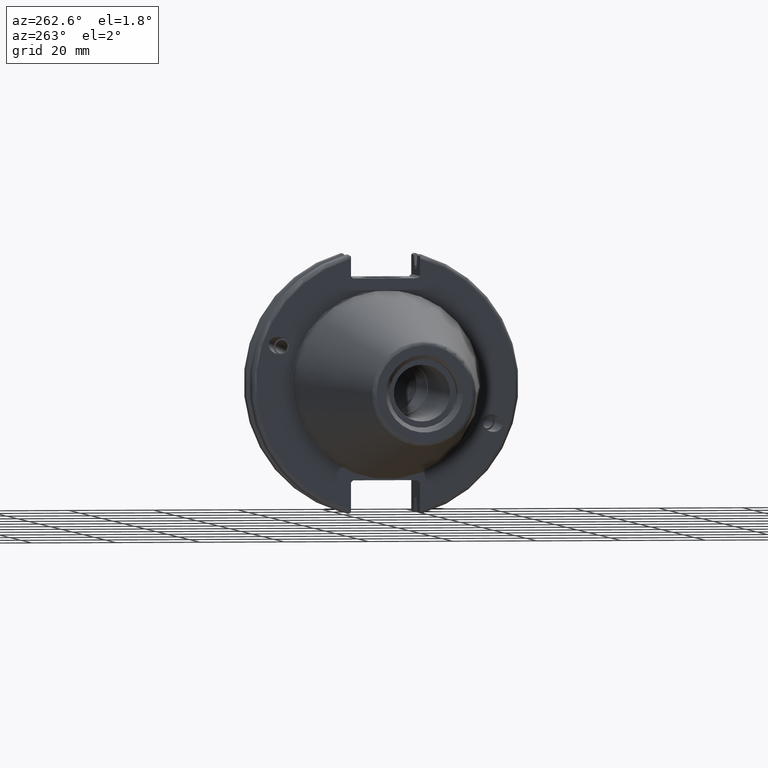
[diagram: clean part render]
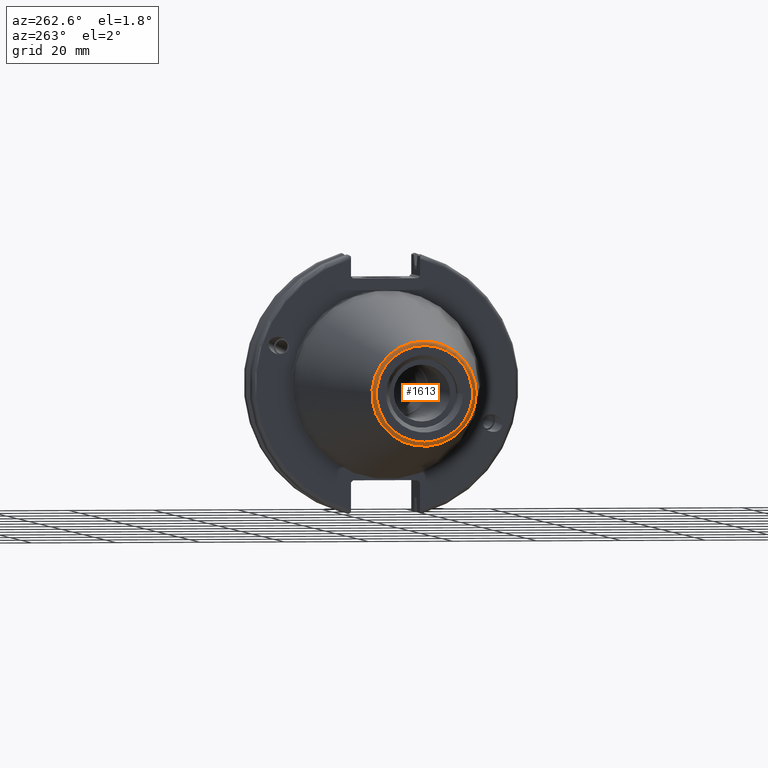
[diagram: same view with one face highlighted and labeled with its STEP entity id]
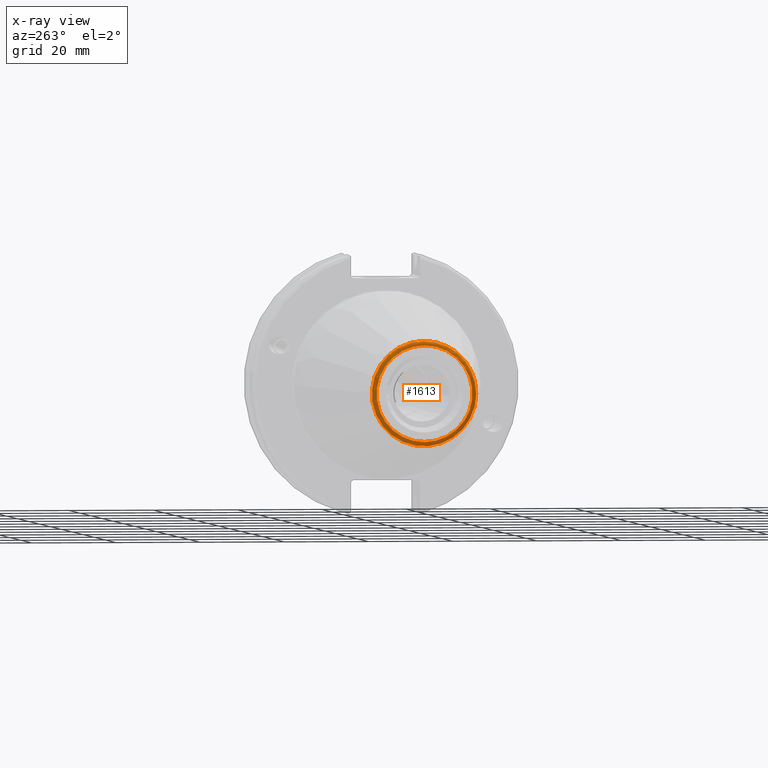
[diagram: x-ray of the same camera — body ghosted, the highlighted face saturated]
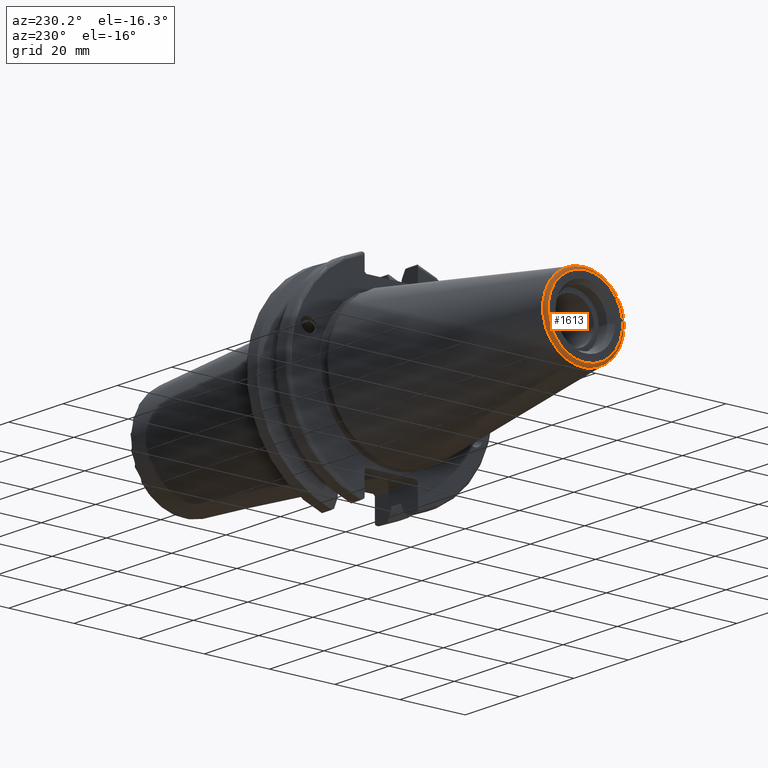
[diagram: same view with one face highlighted and labeled with its STEP entity id]
A machine part, auxiliary view. The second image highlights one B-rep face of the part: STEP entity #1613.
The next image is the same camera in x-ray: the body ghosted, the highlighted face saturated — about 0% of this face is hidden behind the body in this view.
A second angle (auxiliary view) of the same face is appended — the face is thin or edge-on in the first view.
In plain terms, the highlighted toroidal blend (fillet) surface has major radius 11.4071 mm and minor (blend) radius 1 mm.
Its self-contained STEP definition (entity closure, byte-faithful):
#436=FACE_OUTER_BOUND('',#542,.T.);
#542=EDGE_LOOP('',(#1401,#1402,#1403,#1404,#1405));
#637=CIRCLE('',#1810,12.3966635780937);
#638=CIRCLE('',#1811,12.3966635780937);
#639=CIRCLE('',#1812,1.);
#640=CIRCLE('',#1813,11.4071305970304);
#799=VERTEX_POINT('',#3066);
#800=VERTEX_POINT('',#3067);
#801=VERTEX_POINT('',#3070);
#1018=EDGE_CURVE('',#799,#800,#637,.T.);
#1019=EDGE_CURVE('',#800,#799,#638,.T.);
#1020=EDGE_CURVE('',#799,#801,#639,.T.);
#1021=EDGE_CURVE('',#801,#801,#640,.T.);
#1401=ORIENTED_EDGE('',*,*,#1018,.T.);
#1402=ORIENTED_EDGE('',*,*,#1019,.T.);
#1403=ORIENTED_EDGE('',*,*,#1020,.T.);
#1404=ORIENTED_EDGE('',*,*,#1021,.T.);
#1405=ORIENTED_EDGE('',*,*,#1020,.F.);
#1551=TOROIDAL_SURFACE('',#1809,11.4071305970304,1.);
#1613=ADVANCED_FACE('',(#436),#1551,.T.);
#1809=AXIS2_PLACEMENT_3D('',#3065,#2218,#2219);
#1810=AXIS2_PLACEMENT_3D('',#3068,#2220,#2221);
#1811=AXIS2_PLACEMENT_3D('',#3069,#2222,#2223);
#1812=AXIS2_PLACEMENT_3D('',#3071,#2224,#2225);
#1813=AXIS2_PLACEMENT_3D('',#3072,#2226,#2227);
#2218=DIRECTION('center_axis',(1.,0.,0.));
#2219=DIRECTION('ref_axis',(0.,0.,-1.));
#2220=DIRECTION('center_axis',(-1.,0.,0.));
#2221=DIRECTION('ref_axis',(0.,-1.,3.06161699786838E-17));
#2222=DIRECTION('center_axis',(-1.,0.,0.));
#2223=DIRECTION('ref_axis',(0.,-1.,3.06161699786838E-17));
#2224=DIRECTION('center_axis',(0.,-1.,-1.22464679914735E-16));
#2225=DIRECTION('ref_axis',(0.,-1.22464679914735E-16,1.));
#2226=DIRECTION('center_axis',(1.,0.,0.));
#2227=DIRECTION('ref_axis',(0.,-1.,1.83697019872103E-16));
#3065=CARTESIAN_POINT('Origin',(-67.25,0.,0.));
#3066=CARTESIAN_POINT('',(-67.3943068930717,-1.5181534371019E-15,12.3966635780937));
#3067=CARTESIAN_POINT('',(-67.3943068930718,-12.3966635780937,-1.5181534371019E-15));
#3068=CARTESIAN_POINT('Origin',(-67.3943068930717,0.,-1.89769179637738E-15));
#3069=CARTESIAN_POINT('Origin',(-67.3943068930717,0.,-1.89769179637738E-15));
#3070=CARTESIAN_POINT('',(-68.25,-1.39697059731091E-15,11.4071305970304));
#3071=CARTESIAN_POINT('Origin',(-67.25,-1.39697059731091E-15,11.4071305970304));
#3072=CARTESIAN_POINT('Origin',(-68.25,0.,0.));